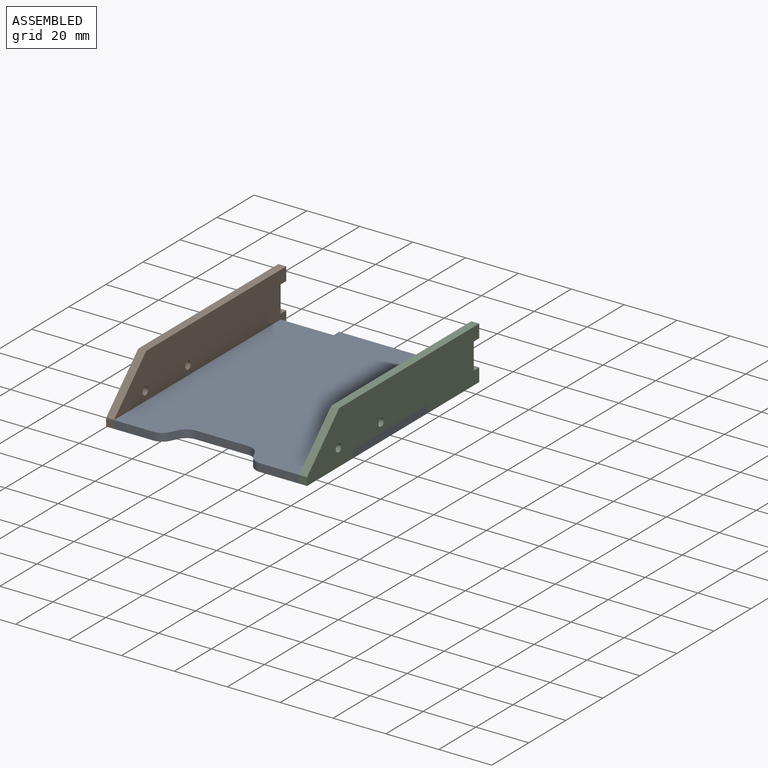
[diagram: assembled view]
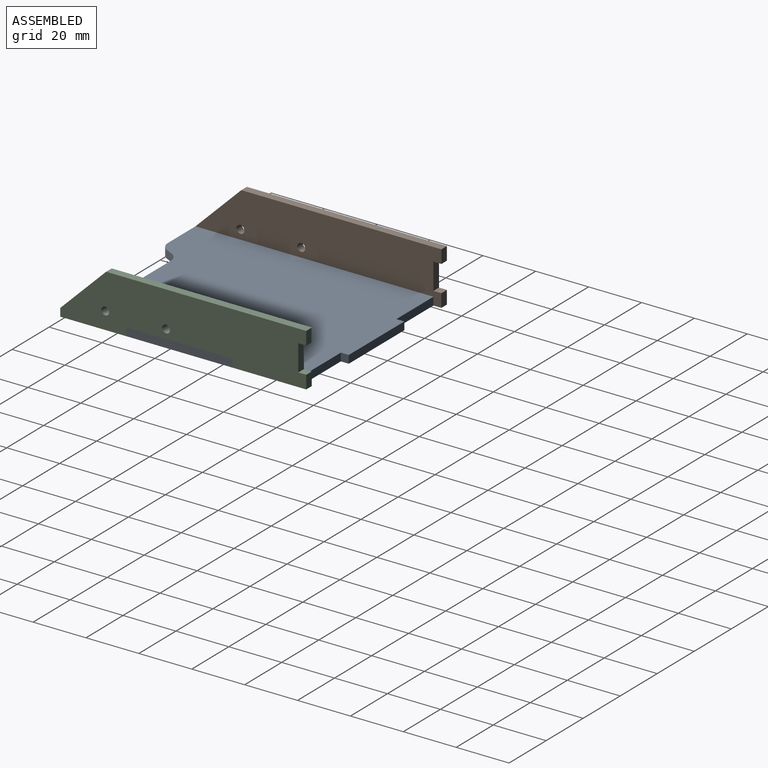
[diagram: assembled view, second angle]
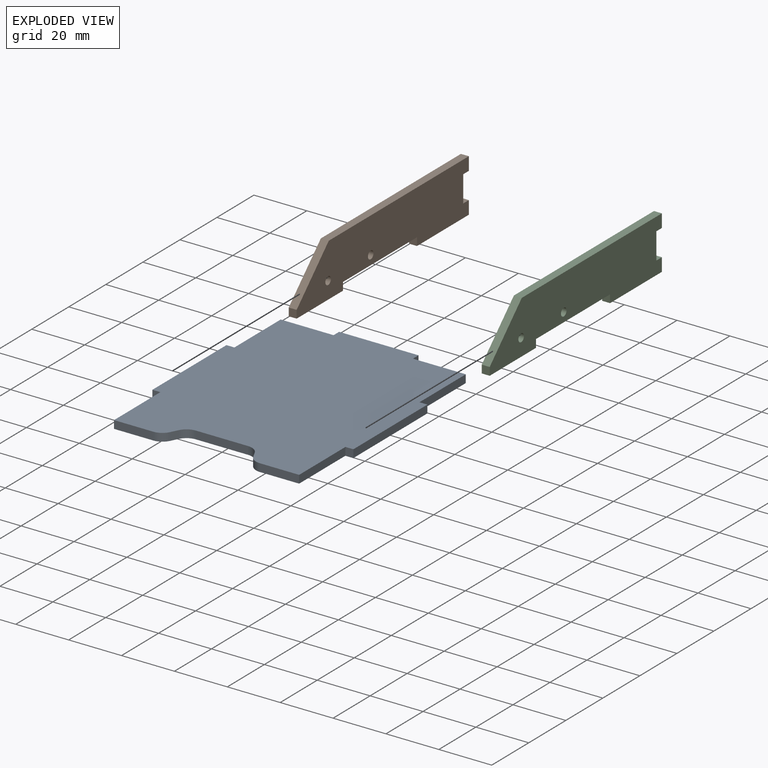
[diagram: exploded view]
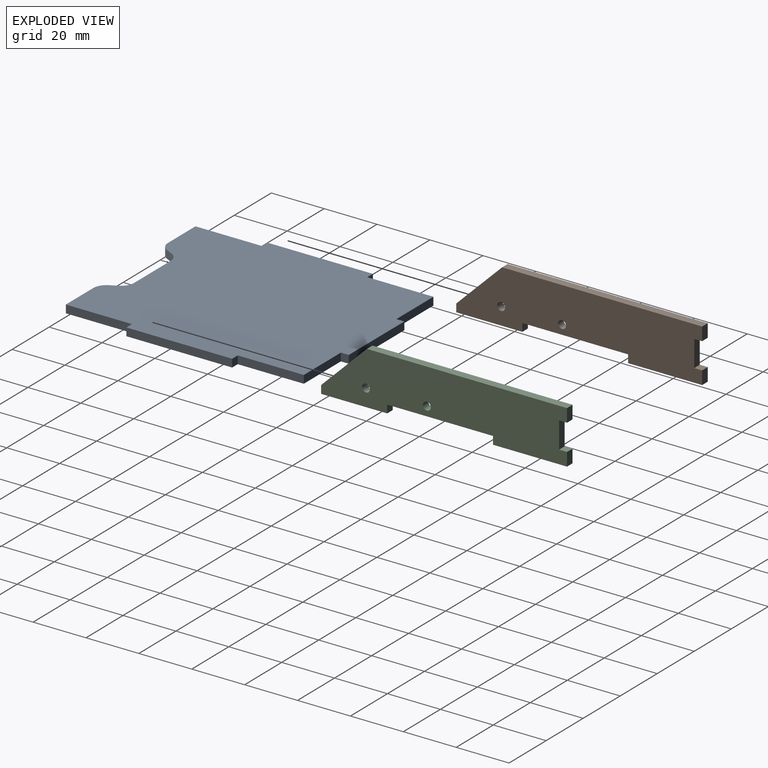
[diagram: exploded view, second angle]
ASSEMBLY  parts=3 mates=2
PART A: 26 faces, bbox 76x93x3 mm
  f0: plane 3x3mm, normal (0,-1,0), area 9mm2, adj f1,f23,f24,f25
  f1: plane 25x3mm, normal (-1,0,0), area 75mm2, adj f0,f2,f24,f25
  f2: plane 14.82x3mm, normal (0,-1,0), area 44.5mm2, adj f1,f3,f24,f25
  f3: cylinder r=5mm len=4.47mm, axis (0,0,-1), area 16.6mm2, adj f2,f4,f24,f25
  f4: plane 3x2.73mm, normal (0.89,-0.45,0), area 9.2mm2, adj f3,f5,f24,f25
  f5: cylinder r=5mm len=4.47mm, axis (0,0,-1), area 16.6mm2, adj f4,f6,f24,f25
  f6: plane 19.75x3mm, normal (0,-1,0), area 59.2mm2, adj f5,f7,f24,f25
  f7: cylinder r=5mm len=4.47mm, axis (0,0,-1), area 16.6mm2, adj f6,f8,f24,f25
  f8: plane 3x2.73mm, normal (-0.89,-0.45,0), area 9.2mm2, adj f7,f9,f24,f25
  f9: cylinder r=5mm len=4.47mm, axis (0,0,-1), area 16.6mm2, adj f8,f10,f24,f25
  f10: plane 14.82x3mm, normal (0,-1,0), area 44.5mm2, adj f9,f11,f24,f25
  f11: plane 25x3mm, normal (1,0,0), area 75mm2, adj f10,f12,f24,f25
  f12: plane 3x3mm, normal (0,-1,0), area 9mm2, adj f11,f13,f24,f25
  f13: plane 40x3mm, normal (1,0,0), area 120mm2, adj f12,f14,f24,f25
  f14: plane 3x3mm, normal (0,1,0), area 9mm2, adj f13,f15,f24,f25
  f15: plane 25x3mm, normal (1,0,0), area 75mm2, adj f14,f16,f24,f25
  f16: plane 20x3mm, normal (0,1,0), area 60mm2, adj f15,f17,f24,f25
  f17: plane 3x3mm, normal (1,0,0), area 9mm2, adj f16,f18,f24,f25
  f18: plane 30x3mm, normal (0,1,0), area 90mm2, adj f17,f19,f24,f25
  f19: plane 3x3mm, normal (-1,0,0), area 9mm2, adj f18,f20,f24,f25
  f20: plane 20x3mm, normal (0,1,0), area 60mm2, adj f19,f21,f24,f25
  f21: plane 25x3mm, normal (-1,0,0), area 75mm2, adj f20,f22,f24,f25
  f22: plane 3x3mm, normal (0,1,0), area 9mm2, adj f21,f23,f24,f25
  f23: plane 40x3mm, normal (-1,0,0), area 120mm2, adj f0,f22,f24,f25
  f24: plane 93x76mm, normal (0,0,1), area 6382.5mm2, adj f0,f1,f2,f3,f4,f5,f6,f7
  f25: plane 93x76mm, normal (0,0,-1), area 6382.5mm2, adj f0,f1,f2,f3,f4,f5,f6,f7
PART B: 17 faces, bbox 3x93x20 mm
  f0: plane 10x3mm, normal (0,-1,0), area 30mm2, adj f1,f14,f15,f16
  f1: plane 3x3mm, normal (0,0,1), area 9mm2, adj f0,f2,f15,f16
  f2: plane 5x3mm, normal (0,-1,0), area 15mm2, adj f1,f3,f15,f16
  f3: plane 28x3mm, normal (0,0,-1), area 84mm2, adj f2,f4,f15,f16
  f4: plane 3x3mm, normal (0,1,0), area 9mm2, adj f3,f5,f15,f16
  f5: plane 40x3mm, normal (0,0,-1), area 120mm2, adj f4,f6,f15,f16
  f6: plane 3x3mm, normal (0,-1,0), area 9mm2, adj f5,f7,f15,f16
  f7: plane 25x3mm, normal (0,0,-1), area 75mm2, adj f6,f8,f15,f16
  f8: plane 3x3mm, normal (0,1,0), area 9mm2, adj f7,f9,f15,f16
  f9: plane 17.34x17mm, normal (0,0.7,0.71), area 72.9mm2, adj f8,f10,f15,f16
  f10: plane 75.66x3mm, normal (0,0,1), area 227mm2, adj f9,f11,f15,f16
  f11: plane 5x3mm, normal (0,-1,0), area 15mm2, adj f10,f14,f15,f16
  f12: cylinder r=1.5mm len=3mm, axis (-1,0,0), area 28.3mm2, adj f15,f16
  f13: cylinder r=1.5mm len=3mm, axis (-1,0,0), area 28.3mm2, adj f15,f16
  f14: plane 3x3mm, normal (0,0,-1), area 9mm2, adj f0,f11,f15,f16
  f15: plane 93x20mm, normal (1,0,0), area 1548.5mm2, adj f0,f1,f2,f3,f4,f5,f6,f7
  f16: plane 93x20mm, normal (-1,0,0), area 1548.5mm2, adj f0,f1,f2,f3,f4,f5,f6,f7
PART C: same geometry as B
PLACE A t=(-6.07,-0.38,5.44)mm
PLACE B rot(axis=(0,0,1),180deg) t=(-41.07,19.63,7.64)mm
PLACE C rot(axis=(0,0,1),180deg) t=(31.93,19.63,7.64)mm
MATE slider C.f4 <-> A.f14  axis (0,-1,0) through (30.43,19.62,6.94)mm
MATE slider B.f4 <-> A.f22  axis (0,-1,0) through (-42.57,19.62,6.94)mm
